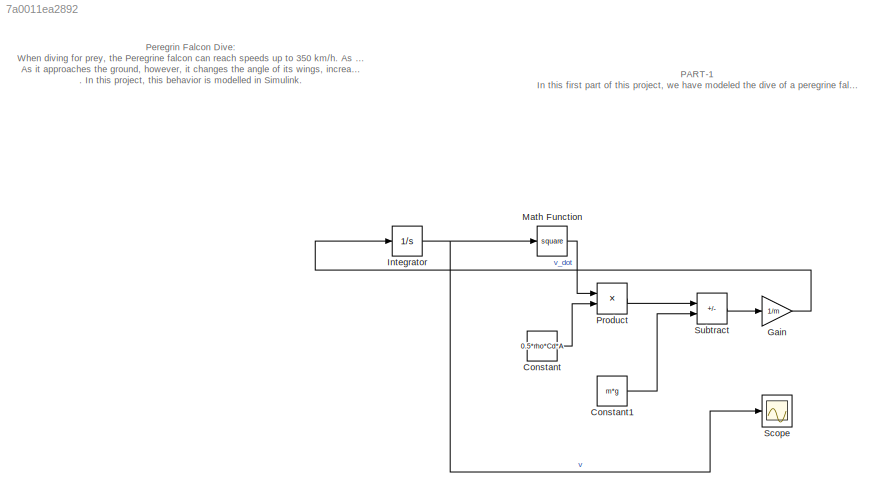
MODEL slx_7a0011ea2892
KIND model
CONFIG AbsTol = auto
CONFIG EnableMultiTasking = off
CONFIG FixedStep = auto
CONFIG MaxStep = auto
CONFIG MinStep = auto
CONFIG RelTol = 1e-3
CONFIG SampleTimeConstraint = Unconstrained
CONFIG SolverName = VariableStepAuto
CONFIG StartTime = 0.0
CONFIG StopTime = 10.0
BLOCK [Constant] Constant
  Value = 0.5*rho*Cd*A
BLOCK [Constant] Constant1
  Value = m*g
BLOCK [Gain] Gain
  Gain = 1/m
BLOCK [Integrator] Integrator
  InitialCondition = -10
BLOCK [Math] Math Function
  Operator = square
BLOCK [Product] Product
BLOCK [Scope] Scope
  Floating = off
  NumInputPorts = 1
  ScopeSpecificationString = Simulink.scopes.TimeScopeBlockCfg('CurrentConfiguration', extmgr.ConfigurationSet(extmgr.Configuration('Core','General UI',true),extmgr.Configuration('Core','Source UI',true),extmgr.Configuration('Sources','WiredSimulink',true),extmgr.Configuration('Visuals','Time Domain',true),extmgr.Configuration('Tools','Plot Navigation',true),extmgr.Configuration('Tools','Measurements',true)),'Version','2022b'...<+1ch>
BLOCK [Sum] Subtract
  IconShape = rectangular
  Inputs = +-
ANNOTATION (root): PART-1 In this first part of this project, we have modeled the dive of a peregrine falcon with fixed parameters
ANNOTATION (root): Peregrin Falcon Dive: When diving for prey, the Peregrine falcon can reach speeds up to 350 km/h. As the falcon dives, the two forces acting on it are gravity and air drag. The equation of motion for this is: mv=12ρCdAv2−mg As it approaches the ground, however, it changes the angle of its wings, increasing drag, to rapidly decelerate to a safe landing speed. This can be modeled by a change in the ...<+92ch>
LINE Constant1:1 -> Subtract:2
LINE Constant:1 -> Product:2
LINE Gain:1 -> Integrator:1
NET Integrator:1 -> Math Function:1, Scope:1
LINE Math Function:1 -> Product:1
LINE Product:1 -> Subtract:1
LINE Subtract:1 -> Gain:1
note: NET lines group one-source signal fan-out (src -> all destinations, sorted); 1:1 wires keep LINE
